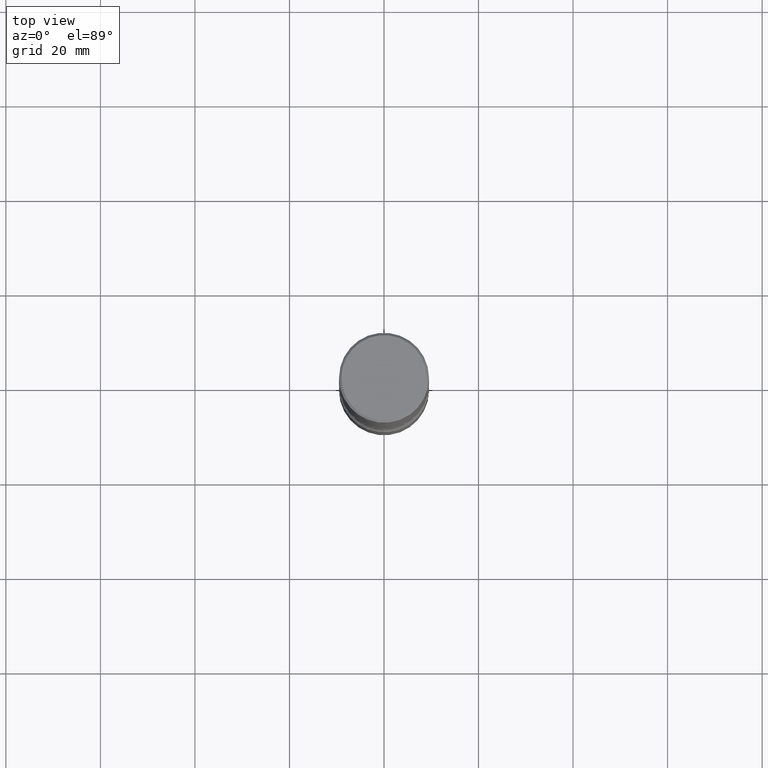
[diagram: clean part render]
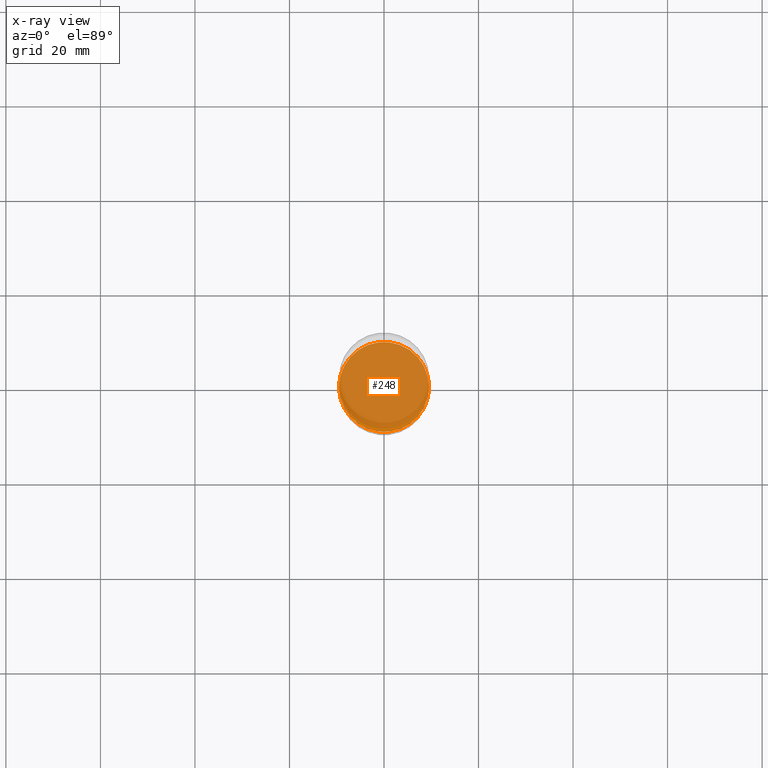
[diagram: x-ray — body ghosted, one internal face saturated and labeled with its STEP entity id]
A machine part, top view, then the same camera in x-ray: the body is ghosted and one INTERNAL B-rep face — a face not visible from any outside direction — is saturated and labeled: STEP entity #248.
In plain terms, the highlighted planar face has unit normal (0, -0, -1).
Its self-contained STEP definition (entity closure, byte-faithful):
#27 = DIRECTION ( 'NONE',  ( 1.000000000000000000, -6.982962677686265922E-15, 0.000000000000000000 ) ) ;
#35 = DIRECTION ( 'NONE',  ( -1.000000000000000000, 6.982962677686265922E-15, -4.876176775795935793E-29 ) ) ;
#38 = DIRECTION ( 'NONE',  ( -2.445468806185136597E-29, 3.491481338843145583E-15, 1.000000000000000000 ) ) ;
#67 = AXIS2_PLACEMENT_3D ( 'NONE', #242, #333, #27 ) ;
#121 = DIRECTION ( 'NONE',  ( 2.438088387897960049E-29, -3.491481338843145188E-15, -1.000000000000000000 ) ) ;
#124 = CIRCLE ( 'NONE', #405, 0.3750000000000003886 ) ;
#141 = AXIS2_PLACEMENT_3D ( 'NONE', #160, #121, #35 ) ;
#143 = VERTEX_POINT ( 'NONE', #420 ) ;
#146 = VERTEX_POINT ( 'NONE', #488 ) ;
#160 = CARTESIAN_POINT ( 'NONE',  ( 1.100460962783311244E-28, -1.571166602479415374E-14, -4.499999999999999112 ) ) ;
#242 = CARTESIAN_POINT ( 'NONE',  ( 1.100460962783311244E-28, -1.571166602479415374E-14, -4.499999999999999112 ) ) ;
#248 = ADVANCED_FACE ( 'NONE', ( #251 ), #425, .F. ) ;
#251 = FACE_OUTER_BOUND ( 'NONE', #455, .T. ) ;
#264 = EDGE_CURVE ( 'NONE', #146, #143, #375, .T. ) ;
#267 = DIRECTION ( 'NONE',  ( 1.000000000000000000, -6.982962677686265922E-15, 0.000000000000000000 ) ) ;
#328 = EDGE_CURVE ( 'NONE', #143, #146, #124, .T. ) ;
#333 = DIRECTION ( 'NONE',  ( -2.445468806185136597E-29, 3.491481338843145583E-15, 1.000000000000000000 ) ) ;
#375 = CIRCLE ( 'NONE', #67, 0.3750000000000003886 ) ;
#398 = ORIENTED_EDGE ( 'NONE', *, *, #264, .T. ) ;
#405 = AXIS2_PLACEMENT_3D ( 'NONE', #519, #38, #267 ) ;
#420 = CARTESIAN_POINT ( 'NONE',  ( 0.3750000000000003886, -1.833027702892650691E-14, -4.499999999999999112 ) ) ;
#425 = PLANE ( 'NONE',  #141 ) ;
#441 = ORIENTED_EDGE ( 'NONE', *, *, #328, .T. ) ;
#455 = EDGE_LOOP ( 'NONE', ( #441, #398 ) ) ;
#488 = CARTESIAN_POINT ( 'NONE',  ( -0.3750000000000003886, -1.564828436313191776E-14, -4.499999999999999112 ) ) ;
#519 = CARTESIAN_POINT ( 'NONE',  ( 1.100460962783311244E-28, -1.571166602479415374E-14, -4.499999999999999112 ) ) ;